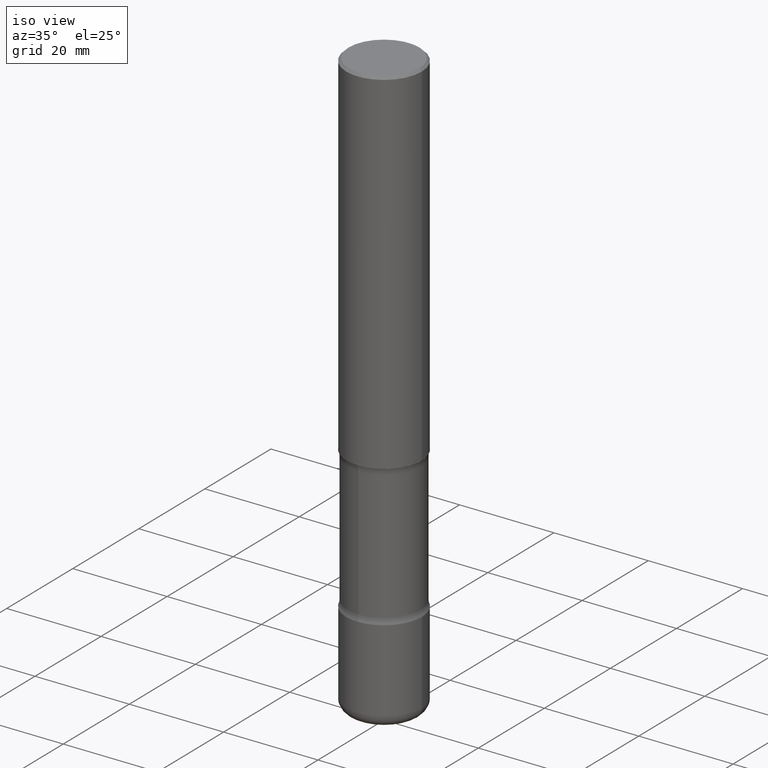
[diagram: clean part render]
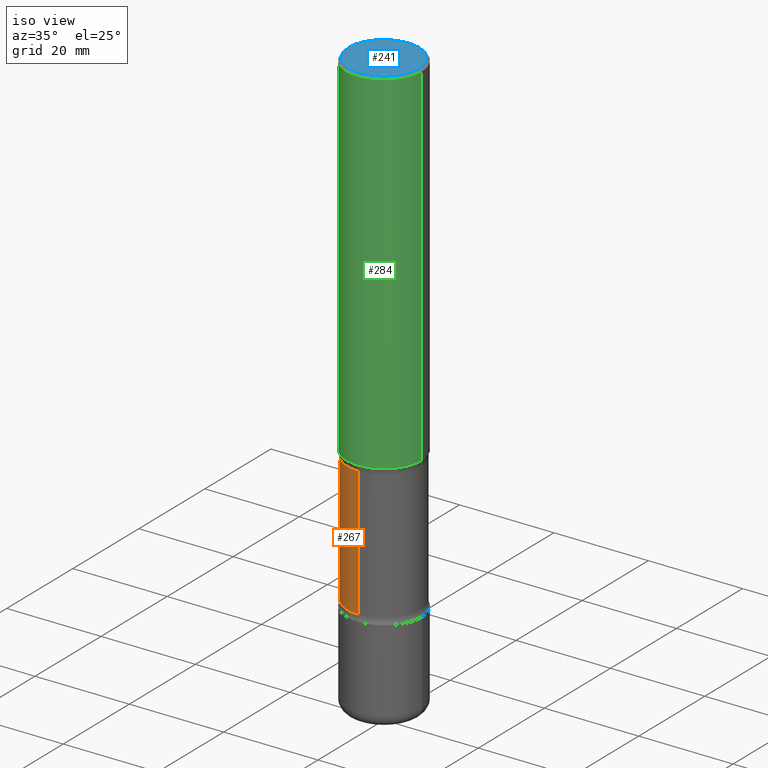
[diagram: same view with three faces highlighted in distinct colors, each labeled with its STEP entity id]
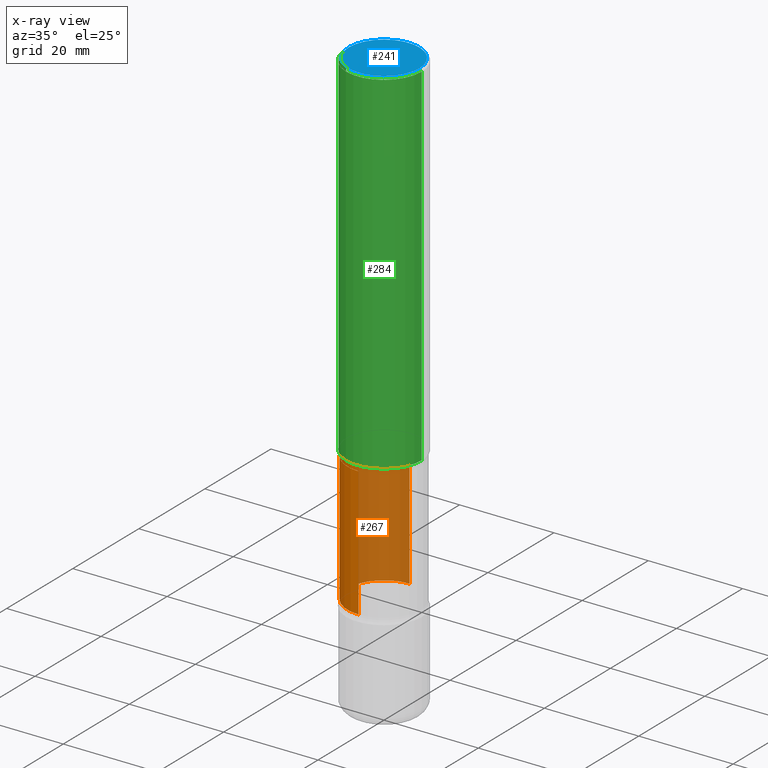
[diagram: x-ray of the same camera — body ghosted, the three highlighted faces saturated]
A machine part, iso view with three faces highlighted in distinct colors.
The next image is the same camera in x-ray (body ghosted, the three faces saturated) — at least one of them is partly hidden behind the body in this view.
Their STEP definitions:

[orange] entity #267 — the highlighted cylindrical surface (partial cylindrical patch) has radius 7.7356 mm, axis along (0, -0, -1).
#7 = ORIENTED_EDGE ( 'NONE', *, *, #360, .F. ) ;
#19 = CYLINDRICAL_SURFACE ( 'NONE', #79, 0.3045500000000001539 ) ;
#36 = DIRECTION ( 'NONE',  ( 2.567670609238910692E-29, -3.316481401575452995E-15, -1.000000000000000000 ) ) ;
#67 = CARTESIAN_POINT ( 'NONE',  ( 2.126661283489452747E-15, 0.3045499999999858320, -4.083981666694491253 ) ) ;
#68 = DIRECTION ( 'NONE',  ( 6.982962677686265922E-15, 1.000000000000000000, -3.588045304435082954E-15 ) ) ;
#79 = AXIS2_PLACEMENT_3D ( 'NONE', #231, #394, #188 ) ;
#90 = CARTESIAN_POINT ( 'NONE',  ( -2.125039254809662113E-15, -0.3045500000000108676, -3.002718333305509191 ) ) ;
#101 = DIRECTION ( 'NONE',  ( 6.982962677686265922E-15, 1.000000000000000000, -3.588045304435084532E-15 ) ) ;
#103 = DIRECTION ( 'NONE',  ( 2.567670609238910692E-29, -3.316481401575452601E-15, -1.000000000000000000 ) ) ;
#145 = AXIS2_PLACEMENT_3D ( 'NONE', #310, #493, #101 ) ;
#162 = LINE ( 'NONE', #328, #193 ) ;
#186 = VECTOR ( 'NONE', #36, 39.37007874015748143 ) ;
#188 = DIRECTION ( 'NONE',  ( 6.982962677686267499E-15, 1.000000000000000000, -3.588045304435083743E-15 ) ) ;
#193 = VECTOR ( 'NONE', #510, 39.37007874015748143 ) ;
#203 = VERTEX_POINT ( 'NONE', #90 ) ;
#231 = CARTESIAN_POINT ( 'NONE',  ( 1.213110733560345635E-28, -1.704483216224419265E-14, -4.921300000000000452 ) ) ;
#267 = ADVANCED_FACE ( 'NONE', ( #318 ), #19, .T. ) ;
#286 = VERTEX_POINT ( 'NONE', #453 ) ;
#296 = CIRCLE ( 'NONE', #438, 0.3045500000000002094 ) ;
#306 = CIRCLE ( 'NONE', #145, 0.3045500000000000984 ) ;
#308 = VERTEX_POINT ( 'NONE', #354 ) ;
#309 = EDGE_CURVE ( 'NONE', #203, #286, #296, .T. ) ;
#310 = CARTESIAN_POINT ( 'NONE',  ( 9.981149660597986220E-29, -1.426788148263830897E-14, -4.083981666694489476 ) ) ;
#318 = FACE_OUTER_BOUND ( 'NONE', #331, .T. ) ;
#322 = LINE ( 'NONE', #559, #186 ) ;
#328 = CARTESIAN_POINT ( 'NONE',  ( -2.089364665221199401E-15, -0.3045500000000171958, -4.921299999999999564 ) ) ;
#331 = EDGE_LOOP ( 'NONE', ( #436, #517, #432, #7 ) ) ;
#354 = CARTESIAN_POINT ( 'NONE',  ( -2.125039254809631347E-15, -0.3045500000000143648, -4.083981666694488588 ) ) ;
#360 = EDGE_CURVE ( 'NONE', #308, #482, #306, .T. ) ;
#394 = DIRECTION ( 'NONE',  ( 2.567670609238910692E-29, -3.316481401575452601E-15, -1.000000000000000000 ) ) ;
#398 = CARTESIAN_POINT ( 'NONE',  ( 7.204821578607410083E-29, -1.068189174724828138E-14, -3.002718333305510523 ) ) ;
#401 = EDGE_CURVE ( 'NONE', #286, #482, #322, .T. ) ;
#432 = ORIENTED_EDGE ( 'NONE', *, *, #401, .T. ) ;
#436 = ORIENTED_EDGE ( 'NONE', *, *, #441, .F. ) ;
#438 = AXIS2_PLACEMENT_3D ( 'NONE', #398, #103, #68 ) ;
#441 = EDGE_CURVE ( 'NONE', #203, #308, #162, .T. ) ;
#453 = CARTESIAN_POINT ( 'NONE',  ( 2.126661283489425925E-15, 0.3045499999999894958, -3.002718333305511411 ) ) ;
#482 = VERTEX_POINT ( 'NONE', #67 ) ;
#493 = DIRECTION ( 'NONE',  ( 2.567670609238910692E-29, -3.316481401575452601E-15, -1.000000000000000000 ) ) ;
#510 = DIRECTION ( 'NONE',  ( 2.567670609238910692E-29, -3.316481401575452995E-15, -1.000000000000000000 ) ) ;
#517 = ORIENTED_EDGE ( 'NONE', *, *, #309, .T. ) ;
#559 = CARTESIAN_POINT ( 'NONE',  ( 2.126661283489474835E-15, 0.3045499999999831120, -4.921300000000002228 ) ) ;

[blue] entity #241 — the highlighted planar face has unit normal (0, -0, -1).
#53 = CARTESIAN_POINT ( 'NONE',  ( 2.059624841783563274E-15, 0.2949499999999998789, -1.023409652156634744E-15 ) ) ;
#89 = EDGE_LOOP ( 'NONE', ( #311, #434 ) ) ;
#137 = VERTEX_POINT ( 'NONE', #142 ) ;
#142 = CARTESIAN_POINT ( 'NONE',  ( -0.2949499999999998789, 2.094539655171994924E-15, 1.280553747028670770E-17 ) ) ;
#148 = DIRECTION ( 'NONE',  ( 2.438088387897960049E-29, -3.491481338843145188E-15, -1.000000000000000000 ) ) ;
#159 = DIRECTION ( 'NONE',  ( 1.000000000000000000, -6.982962677686267499E-15, 4.876053491004736589E-29 ) ) ;
#202 = AXIS2_PLACEMENT_3D ( 'NONE', #53, #148, #315 ) ;
#207 = DIRECTION ( 'NONE',  ( -2.445468806185136597E-29, 3.491481338843145583E-15, 1.000000000000000000 ) ) ;
#238 = CARTESIAN_POINT ( 'NONE',  ( -3.131554243005659264E-46, 4.471029511141341874E-32, 1.280553747030123384E-17 ) ) ;
#241 = ADVANCED_FACE ( 'NONE', ( #484 ), #435, .F. ) ;
#246 = AXIS2_PLACEMENT_3D ( 'NONE', #551, #207, #369 ) ;
#283 = CARTESIAN_POINT ( 'NONE',  ( 0.2949499999999998789, -2.127023677808859286E-15, 1.280553747031587399E-17 ) ) ;
#311 = ORIENTED_EDGE ( 'NONE', *, *, #494, .T. ) ;
#315 = DIRECTION ( 'NONE',  ( -1.000000000000000000, 6.982962677686265922E-15, -4.876176775795935793E-29 ) ) ;
#317 = CIRCLE ( 'NONE', #343, 0.2949499999999998789 ) ;
#343 = AXIS2_PLACEMENT_3D ( 'NONE', #238, #356, #159 ) ;
#356 = DIRECTION ( 'NONE',  ( -2.445468806185136597E-29, 3.491481338843145583E-15, 1.000000000000000000 ) ) ;
#369 = DIRECTION ( 'NONE',  ( 1.000000000000000000, -6.982962677686267499E-15, 4.876053491004736589E-29 ) ) ;
#407 = EDGE_CURVE ( 'NONE', #425, #137, #507, .T. ) ;
#425 = VERTEX_POINT ( 'NONE', #283 ) ;
#434 = ORIENTED_EDGE ( 'NONE', *, *, #407, .T. ) ;
#435 = PLANE ( 'NONE',  #202 ) ;
#484 = FACE_OUTER_BOUND ( 'NONE', #89, .T. ) ;
#494 = EDGE_CURVE ( 'NONE', #137, #425, #317, .T. ) ;
#507 = CIRCLE ( 'NONE', #246, 0.2949499999999998789 ) ;
#551 = CARTESIAN_POINT ( 'NONE',  ( -3.131554243005659264E-46, 4.471029511141341874E-32, 1.280553747030123384E-17 ) ) ;

[green] entity #284 — the highlighted cylindrical surface (partial cylindrical patch) has radius 7.9997 mm, axis along (-0, 0, 1).
#21 = LINE ( 'NONE', #234, #167 ) ;
#26 = LINE ( 'NONE', #32, #236 ) ;
#29 = CARTESIAN_POINT ( 'NONE',  ( 0.000000000000000000, 0.000000000000000000, 0.000000000000000000 ) ) ;
#32 = CARTESIAN_POINT ( 'NONE',  ( 0.3149500000000000077, -2.199284095337289871E-15, 1.535751875536930130E-29 ) ) ;
#66 = DIRECTION ( 'NONE',  ( -2.445468806185136597E-29, 3.491481338843145583E-15, 1.000000000000000000 ) ) ;
#84 = ORIENTED_EDGE ( 'NONE', *, *, #91, .T. ) ;
#91 = EDGE_CURVE ( 'NONE', #485, #117, #26, .T. ) ;
#117 = VERTEX_POINT ( 'NONE', #174 ) ;
#121 = CIRCLE ( 'NONE', #405, 0.3149499999999998967 ) ;
#149 = CARTESIAN_POINT ( 'NONE',  ( 4.890937612370289799E-31, -6.982962677686315028E-17, -0.02000000000000006981 ) ) ;
#153 = DIRECTION ( 'NONE',  ( -2.445468806185136597E-29, 3.491481338843145583E-15, 1.000000000000000000 ) ) ;
#167 = VECTOR ( 'NONE', #454, 39.37007874015748143 ) ;
#174 = CARTESIAN_POINT ( 'NONE',  ( 0.3149499999999998967, -2.230543471175006266E-15, -0.02000000000000006981 ) ) ;
#182 = DIRECTION ( 'NONE',  ( -2.445468806185136877E-29, 3.491481338843145188E-15, 1.000000000000000000 ) ) ;
#192 = CARTESIAN_POINT ( 'NONE',  ( 7.220980290903470182E-29, -1.030964609733603853E-14, -2.952799999999999869 ) ) ;
#195 = CARTESIAN_POINT ( 'NONE',  ( 0.3149500000000001743, -1.250893019267332998E-14, -2.952799999999999869 ) ) ;
#216 = VERTEX_POINT ( 'NONE', #477 ) ;
#234 = CARTESIAN_POINT ( 'NONE',  ( -0.3149500000000000077, 2.237854346276435590E-15, -1.549218606675782676E-29 ) ) ;
#236 = VECTOR ( 'NONE', #182, 39.37007874015748143 ) ;
#245 = EDGE_CURVE ( 'NONE', #216, #485, #262, .T. ) ;
#255 = ORIENTED_EDGE ( 'NONE', *, *, #339, .F. ) ;
#262 = CIRCLE ( 'NONE', #499, 0.3149500000000001743 ) ;
#270 = CYLINDRICAL_SURFACE ( 'NONE', #272, 0.3149500000000000077 ) ;
#272 = AXIS2_PLACEMENT_3D ( 'NONE', #29, #66, #358 ) ;
#284 = ADVANCED_FACE ( 'NONE', ( #538 ), #270, .T. ) ;
#285 = EDGE_CURVE ( 'NONE', #390, #117, #121, .T. ) ;
#339 = EDGE_CURVE ( 'NONE', #216, #390, #21, .T. ) ;
#358 = DIRECTION ( 'NONE',  ( 1.000000000000000000, -6.982962677686266711E-15, 4.876176775795936353E-29 ) ) ;
#390 = VERTEX_POINT ( 'NONE', #409 ) ;
#392 = DIRECTION ( 'NONE',  ( 1.000000000000000000, -6.982962677686265922E-15, 0.000000000000000000 ) ) ;
#405 = AXIS2_PLACEMENT_3D ( 'NONE', #149, #448, #534 ) ;
#409 = CARTESIAN_POINT ( 'NONE',  ( -0.3149499999999998967, 2.129454468560425784E-15, -0.02000000000000006981 ) ) ;
#418 = ORIENTED_EDGE ( 'NONE', *, *, #285, .F. ) ;
#433 = ORIENTED_EDGE ( 'NONE', *, *, #245, .T. ) ;
#448 = DIRECTION ( 'NONE',  ( -2.445468806185136597E-29, 3.491481338843145583E-15, 1.000000000000000000 ) ) ;
#454 = DIRECTION ( 'NONE',  ( -2.445468806185136877E-29, 3.491481338843145188E-15, 1.000000000000000000 ) ) ;
#477 = CARTESIAN_POINT ( 'NONE',  ( -0.3149500000000001743, -2.951883515780012562E-15, -2.952799999999999869 ) ) ;
#485 = VERTEX_POINT ( 'NONE', #195 ) ;
#499 = AXIS2_PLACEMENT_3D ( 'NONE', #192, #153, #392 ) ;
#523 = EDGE_LOOP ( 'NONE', ( #255, #433, #84, #418 ) ) ;
#534 = DIRECTION ( 'NONE',  ( 1.000000000000000000, -6.982962677686265922E-15, 0.000000000000000000 ) ) ;
#538 = FACE_OUTER_BOUND ( 'NONE', #523, .T. ) ;